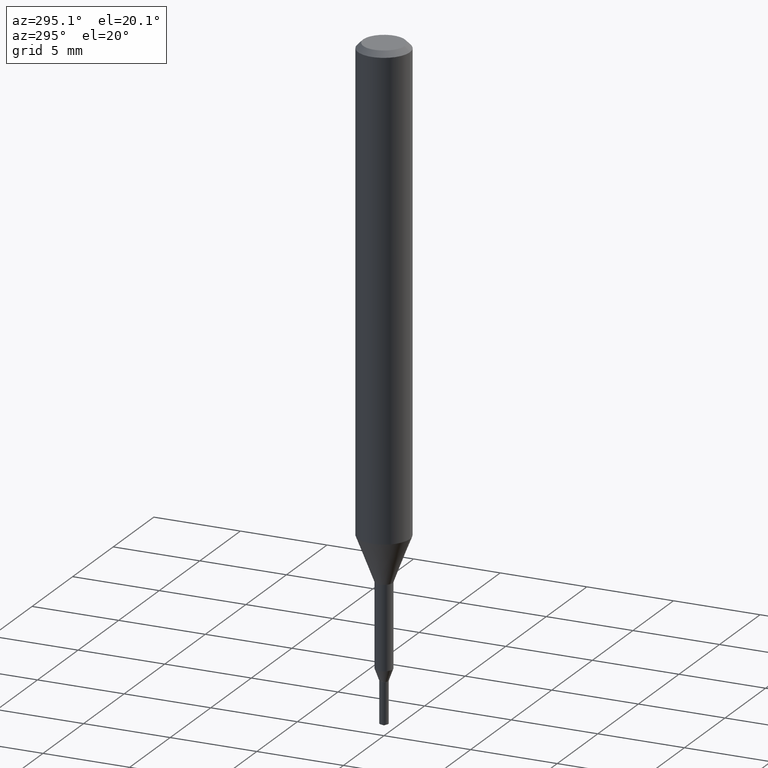
[diagram: clean part render]
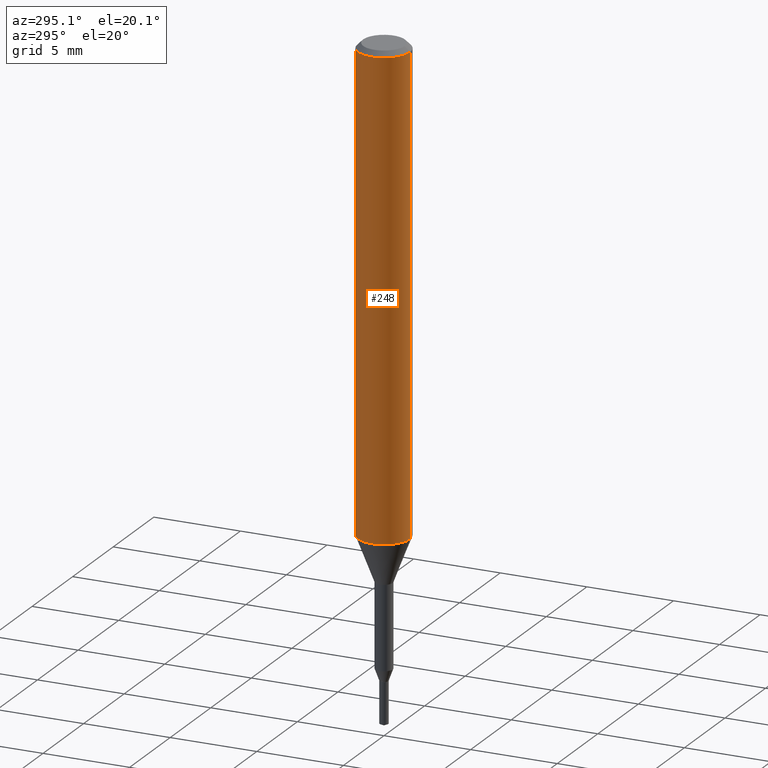
[diagram: same view with one face highlighted and labeled with its STEP entity id]
A machine part, auxiliary view. The second image highlights one B-rep face of the part: STEP entity #248.
In plain terms, the highlighted cylindrical surface (edge-blend (fillet) strip) has radius 1.5 mm, axis along (-0, -0, 1).
Its self-contained STEP definition (entity closure, byte-faithful):
#120=EDGE_CURVE('',#236,#172,#297,.T.);
#142=EDGE_CURVE('',#212,#266,#323,.T.);
#172=VERTEX_POINT('',#356);
#194=EDGE_CURVE('',#266,#172,#379,.T.);
#196=EDGE_CURVE('',#236,#212,#381,.T.);
#212=VERTEX_POINT('',#401);
#236=VERTEX_POINT('',#426);
#248=ADVANCED_FACE('',(#441),#442,.T.);
#266=VERTEX_POINT('',#463);
#297=CIRCLE('',#491,1.5);
#323=CIRCLE('',#518,1.5);
#356=CARTESIAN_POINT('',(0.0,1.5,-27.395));
#379=LINE('',#594,#595);
#381=LINE('',#598,#599);
#401=CARTESIAN_POINT('',(1.83690953073357E-016,-1.5,-0.300000000000001));
#426=CARTESIAN_POINT('',(1.83690953073357E-016,-1.5,-27.395));
#441=FACE_OUTER_BOUND('',#675,.T.);
#442=CYLINDRICAL_SURFACE('',#676,1.5);
#463=CARTESIAN_POINT('',(0.0,1.5,-0.300000000000001));
#491=AXIS2_PLACEMENT_3D('',#717,#718,#719);
#518=AXIS2_PLACEMENT_3D('',#754,#755,#756);
#594=CARTESIAN_POINT('',(-1.83690953073357E-016,1.5,-13.8475));
#595=VECTOR('',#814,1.0);
#598=CARTESIAN_POINT('',(1.83690953073357E-016,-1.5,-13.8475));
#599=VECTOR('',#815,1.0);
#675=EDGE_LOOP('',(#894,#895,#896,#897));
#676=AXIS2_PLACEMENT_3D('',#898,#899,#900);
#717=CARTESIAN_POINT('',(0.0,0.0,-27.395));
#718=DIRECTION('',(0.0,0.0,-1.0));
#719=DIRECTION('',(0.0,1.0,0.0));
#754=CARTESIAN_POINT('',(0.0,0.0,-0.300000000000001));
#755=DIRECTION('',(0.0,0.0,-1.0));
#756=DIRECTION('',(0.0,1.0,0.0));
#814=DIRECTION('',(0.0,0.0,-1.0));
#815=DIRECTION('',(-0.0,-0.0,1.0));
#894=ORIENTED_EDGE('',*,*,#194,.T.);
#895=ORIENTED_EDGE('',*,*,#120,.F.);
#896=ORIENTED_EDGE('',*,*,#196,.T.);
#897=ORIENTED_EDGE('',*,*,#142,.T.);
#898=CARTESIAN_POINT('',(0.0,0.0,-13.8475));
#899=DIRECTION('',(-0.0,-0.0,1.0));
#900=DIRECTION('',(0.0,1.0,0.0));